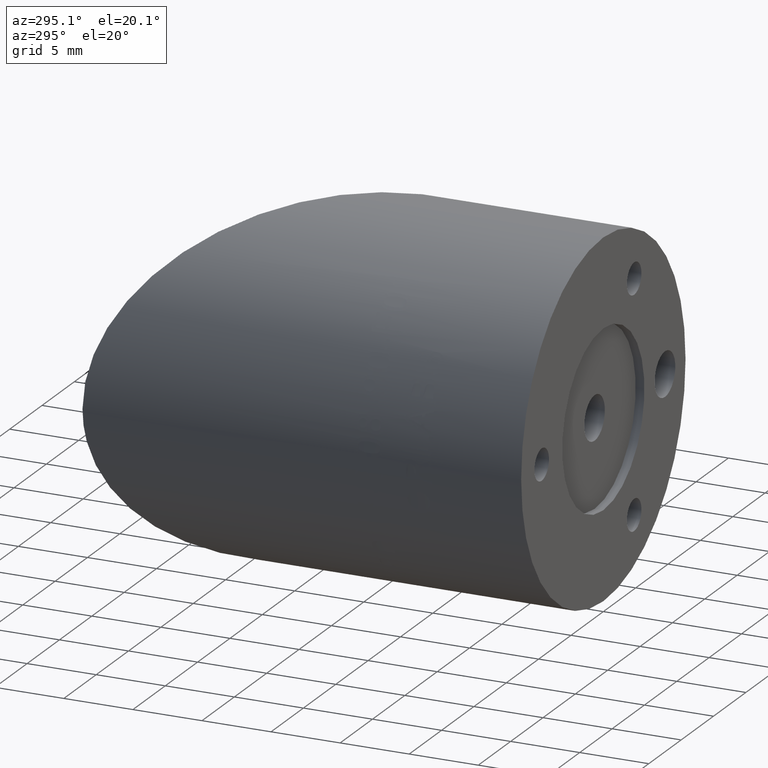
[diagram: clean part render]
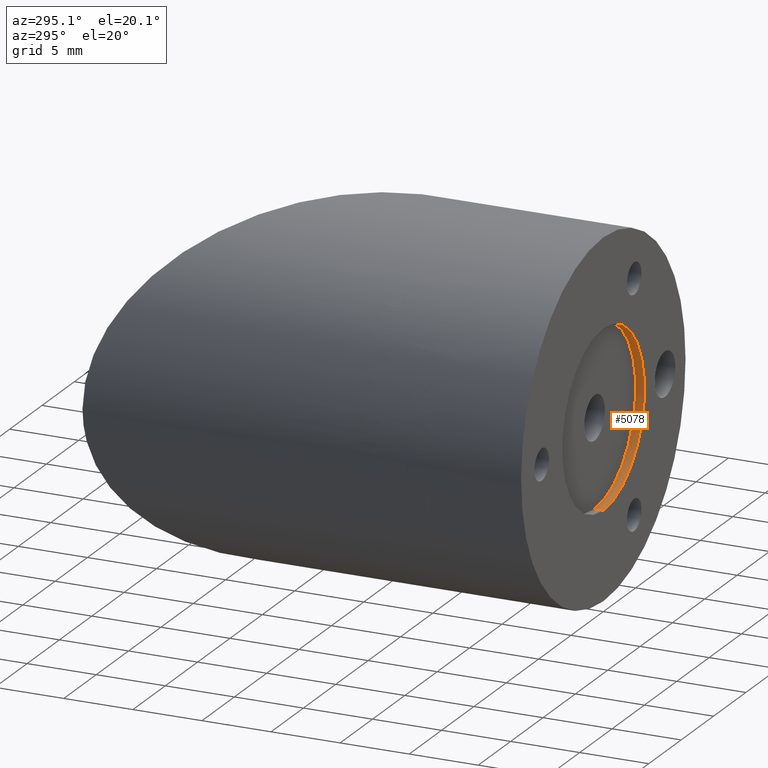
[diagram: same view with one face highlighted and labeled with its STEP entity id]
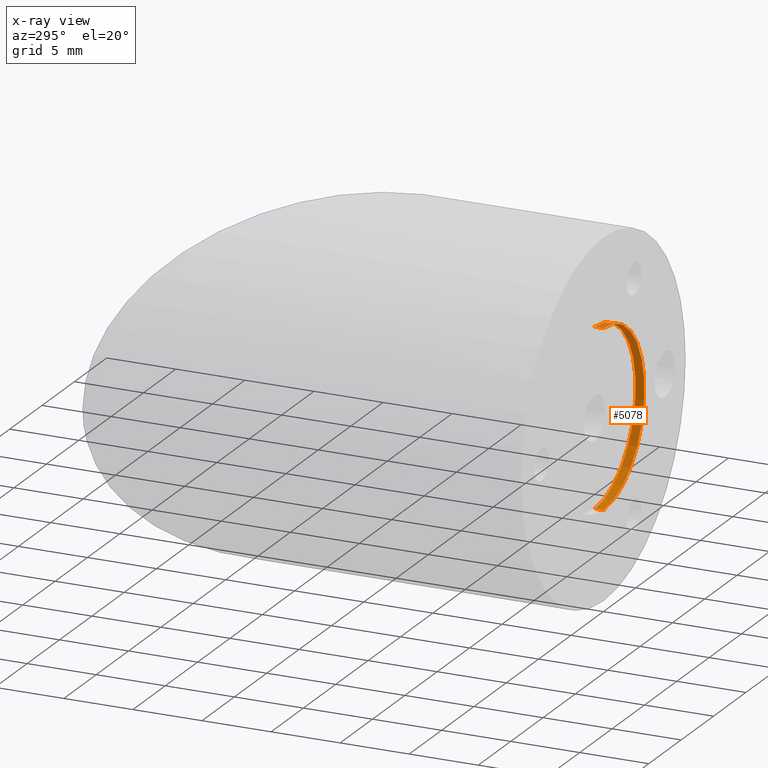
[diagram: x-ray of the same camera — body ghosted, the highlighted face saturated]
A machine part, auxiliary view. The second image highlights one B-rep face of the part: STEP entity #5078.
The next image is the same camera in x-ray: the body ghosted, the highlighted face saturated — about 0% of this face is hidden behind the body in this view.
In plain terms, the highlighted cylindrical surface (partial cylindrical patch) has radius 6.35 mm, axis along (0, -1, 0).
Its self-contained STEP definition (entity closure, byte-faithful):
#1968 = CIRCLE ( 'NONE', #1996, 6.349999999999999600 ) ;
#1993 = DIRECTION ( 'NONE',  ( 0.0000000000000000000, 0.0000000000000000000, 1.000000000000000000 ) ) ;
#1994 = DIRECTION ( 'NONE',  ( 0.0000000000000000000, 1.000000000000000000, 0.0000000000000000000 ) ) ;
#1995 = CARTESIAN_POINT ( 'NONE',  ( 0.0000000000000000000, 0.0000000000000000000, 0.0000000000000000000 ) ) ;
#1996 = AXIS2_PLACEMENT_3D ( 'NONE', #1995, #1994, #1993 ) ;
#2129 = CARTESIAN_POINT ( 'NONE',  ( 0.0000000000000000000, 0.6350000000000000100, 0.0000000000000000000 ) ) ;
#2130 = AXIS2_PLACEMENT_3D ( 'NONE', #2129, #2199, #2198 ) ;
#2131 = AXIS2_PLACEMENT_3D ( 'NONE', #2194, #2193, #2192 ) ;
#2152 = FACE_OUTER_BOUND ( 'NONE', #5044, .T. ) ;
#2153 = CYLINDRICAL_SURFACE ( 'NONE', #2130, 6.349999999999999600 ) ;
#2192 = DIRECTION ( 'NONE',  ( 0.0000000000000000000, 0.0000000000000000000, 1.000000000000000000 ) ) ;
#2193 = DIRECTION ( 'NONE',  ( 0.0000000000000000000, 1.000000000000000000, 0.0000000000000000000 ) ) ;
#2194 = CARTESIAN_POINT ( 'NONE',  ( 0.0000000000000000000, 0.6350000000000000100, 0.0000000000000000000 ) ) ;
#2195 = CIRCLE ( 'NONE', #2131, 6.349999999999999600 ) ;
#2198 = DIRECTION ( 'NONE',  ( 0.0000000000000000000, 0.0000000000000000000, -1.000000000000000000 ) ) ;
#2199 = DIRECTION ( 'NONE',  ( 0.0000000000000000000, -1.000000000000000000, 0.0000000000000000000 ) ) ;
#3584 = DIRECTION ( 'NONE',  ( 0.0000000000000000000, -1.000000000000000000, 0.0000000000000000000 ) ) ;
#3585 = VECTOR ( 'NONE', #3584, 1000.000000000000000 ) ;
#3586 = CARTESIAN_POINT ( 'NONE',  ( 7.776507174585692200E-016, 0.6350000000000000100, 6.349999999999999600 ) ) ;
#3587 = LINE ( 'NONE', #3586, #3585 ) ;
#3641 = DIRECTION ( 'NONE',  ( 0.0000000000000000000, -1.000000000000000000, 0.0000000000000000000 ) ) ;
#3642 = VECTOR ( 'NONE', #3641, 1000.000000000000000 ) ;
#3648 = CARTESIAN_POINT ( 'NONE',  ( 0.0000000000000000000, 0.6350000000000000100, -6.349999999999999600 ) ) ;
#3649 = LINE ( 'NONE', #3648, #3642 ) ;
#3871 = CARTESIAN_POINT ( 'NONE',  ( 0.0000000000000000000, 0.6350000000000000100, -6.349999999999999600 ) ) ;
#3878 = CARTESIAN_POINT ( 'NONE',  ( 7.776507174585692200E-016, 0.6350000000000000100, 6.349999999999999600 ) ) ;
#3930 = CARTESIAN_POINT ( 'NONE',  ( 7.776507174585692200E-016, 0.0000000000000000000, 6.349999999999999600 ) ) ;
#3936 = CARTESIAN_POINT ( 'NONE',  ( 0.0000000000000000000, 0.0000000000000000000, -6.349999999999999600 ) ) ;
#4984 = EDGE_CURVE ( 'NONE', #5412, #5411, #1968, .T. ) ;
#5026 = ORIENTED_EDGE ( 'NONE', *, *, #5079, .T. ) ;
#5031 = ORIENTED_EDGE ( 'NONE', *, *, #5352, .F. ) ;
#5044 = EDGE_LOOP ( 'NONE', ( #5031, #5026, #5081, #5080 ) ) ;
#5078 = ADVANCED_FACE ( 'NONE', ( #2152 ), #2153, .F. ) ;
#5079 = EDGE_CURVE ( 'NONE', #5391, #5396, #2195, .T. ) ;
#5080 = ORIENTED_EDGE ( 'NONE', *, *, #4984, .F. ) ;
#5081 = ORIENTED_EDGE ( 'NONE', *, *, #5356, .T. ) ;
#5352 = EDGE_CURVE ( 'NONE', #5391, #5412, #3587, .T. ) ;
#5356 = EDGE_CURVE ( 'NONE', #5396, #5411, #3649, .T. ) ;
#5391 = VERTEX_POINT ( 'NONE', #3878 ) ;
#5396 = VERTEX_POINT ( 'NONE', #3871 ) ;
#5411 = VERTEX_POINT ( 'NONE', #3936 ) ;
#5412 = VERTEX_POINT ( 'NONE', #3930 ) ;